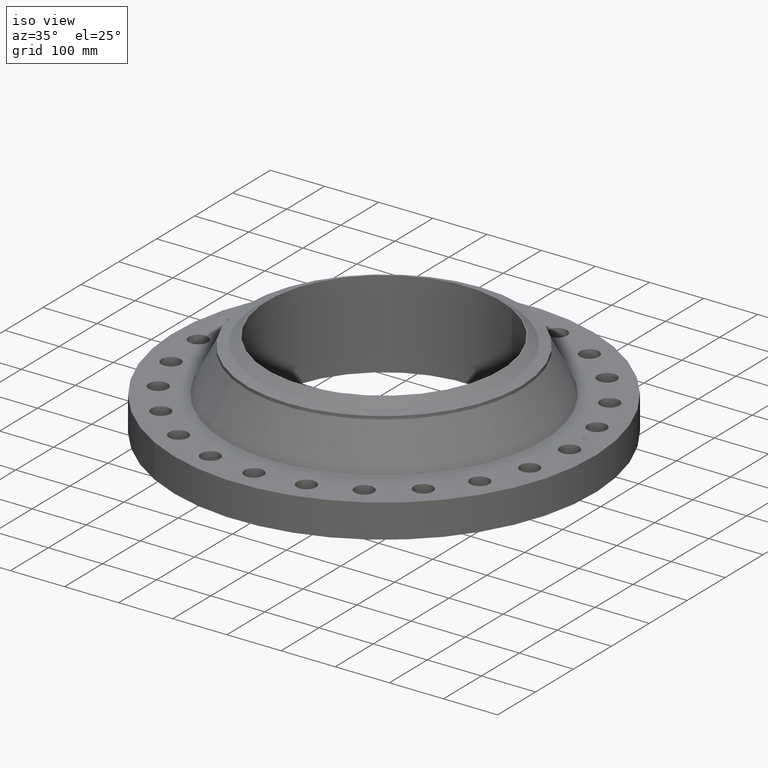
[diagram: clean part render]
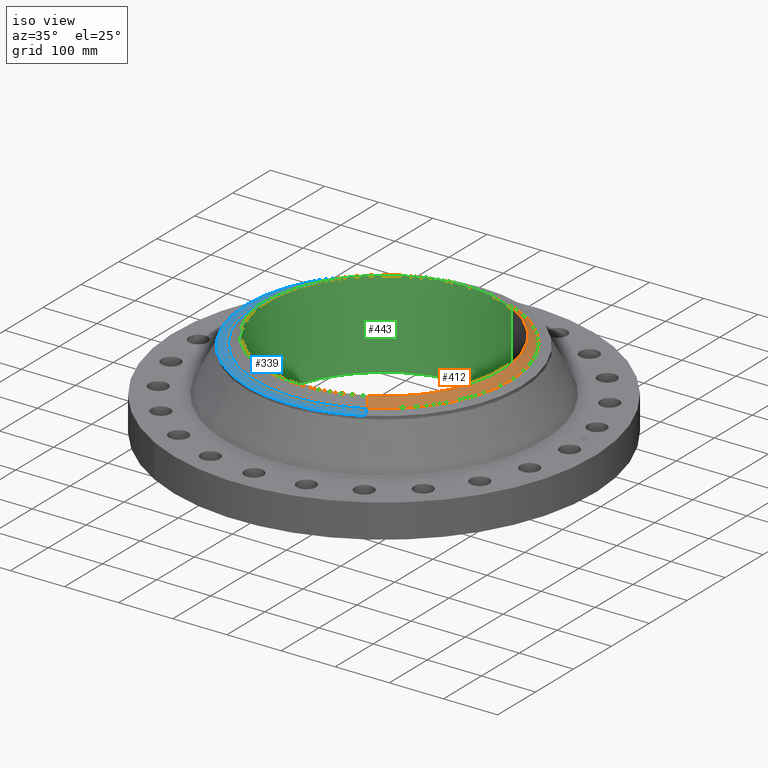
[diagram: same view with three faces highlighted in distinct colors, each labeled with its STEP entity id]
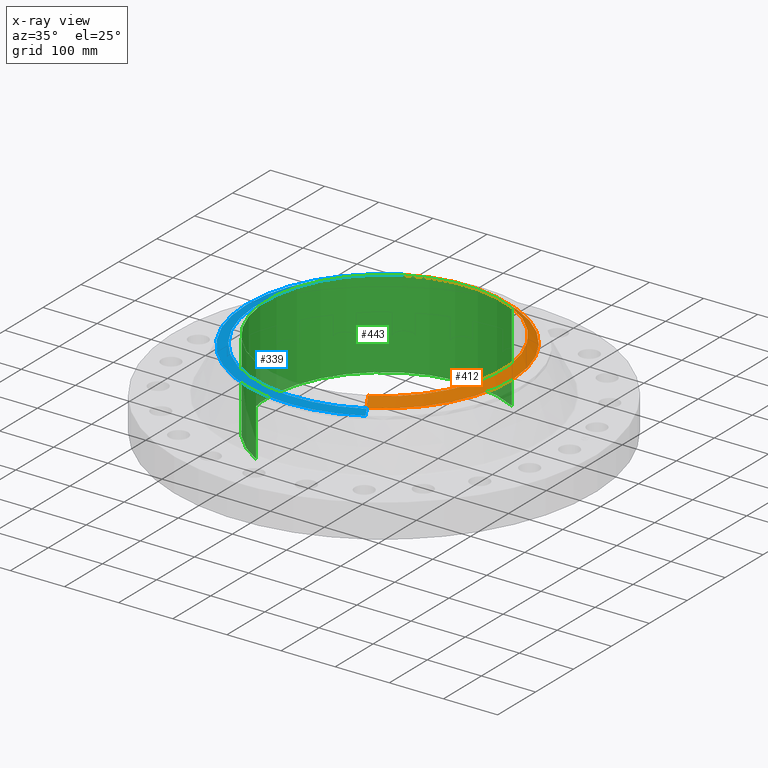
[diagram: x-ray of the same camera — body ghosted, the three highlighted faces saturated]
A machine part, iso view with three faces highlighted in distinct colors.
The next image is the same camera in x-ray (body ghosted, the three faces saturated) — at least one of them is partly hidden behind the body in this view.
Their STEP definitions:

[orange] entity #412 — the highlighted conical surface has half-angle 52.5 deg.
#347=AXIS2_PLACEMENT_3D('Circle Axis2P3D',#345,#346,$) ;
#385=AXIS2_PLACEMENT_3D('Cone Axis2P3D',#382,#383,#384) ;
#396=AXIS2_PLACEMENT_3D('Circle Axis2P3D',#394,#395,$) ;
#345=CARTESIAN_POINT('Axis2P3D Location',(0.,0.,6.32000000003)) ;
#349=CARTESIAN_POINT('Vertex',(4.11286712056,-7.52855276522,6.32000000003)) ;
#351=CARTESIAN_POINT('Vertex',(-4.11286712056,7.52855276522,6.32000000003)) ;
#382=CARTESIAN_POINT('Axis2P3D Location',(0.,0.,6.32000000003)) ;
#387=CARTESIAN_POINT('Line Origine',(4.26780842311,-7.81217091713,6.07201437259)) ;
#391=CARTESIAN_POINT('Vertex',(4.42274972566,-8.09578906903,5.82402874515)) ;
#394=CARTESIAN_POINT('Axis2P3D Location',(0.,0.,5.82402874515)) ;
#398=CARTESIAN_POINT('Vertex',(-4.42274972566,8.09578906903,5.82402874515)) ;
#401=CARTESIAN_POINT('Line Origine',(-4.26780842311,7.81217091713,6.07201437259)) ;
#346=DIRECTION('Axis2P3D Direction',(0.,0.,-0.0393700787402)) ;
#383=DIRECTION('Axis2P3D Direction',(-0.,-0.,-0.0393700787402)) ;
#384=DIRECTION('Axis2P3D XDirection',(0.0188750212049,-0.0345504945626,0.)) ;
#388=DIRECTION('Vector Direction',(0.014974561121,-0.02741075027,-0.023966985394)) ;
#395=DIRECTION('Axis2P3D Direction',(0.,0.,-0.0393700787402)) ;
#402=DIRECTION('Vector Direction',(-0.014974561121,0.02741075027,-0.023966985394)) ;
#389=VECTOR('Line Direction',#388,0.0393700787402) ;
#403=VECTOR('Line Direction',#402,0.0393700787402) ;
#407=ORIENTED_EDGE('',*,*,#353,.F.) ;
#408=ORIENTED_EDGE('',*,*,#393,.T.) ;
#409=ORIENTED_EDGE('',*,*,#400,.T.) ;
#410=ORIENTED_EDGE('',*,*,#405,.F.) ;
#412=ADVANCED_FACE('PartBody',(#411),#386,.T.) ;
#348=CIRCLE('generated circle',#347,8.57874015751) ;
#397=CIRCLE('generated circle',#396,9.22510248106) ;
#386=CONICAL_SURFACE('Cone',#385,8.57874015751,0.916297857297) ;
#353=EDGE_CURVE('',#350,#352,#348,.F.) ;
#393=EDGE_CURVE('',#350,#392,#390,.T.) ;
#400=EDGE_CURVE('',#392,#399,#397,.F.) ;
#405=EDGE_CURVE('',#352,#399,#404,.T.) ;
#406=EDGE_LOOP('',(#407,#408,#409,#410)) ;
#411=FACE_OUTER_BOUND('',#406,.T.) ;
#390=LINE('Line',#387,#389) ;
#404=LINE('Line',#401,#403) ;
#350=VERTEX_POINT('',#349) ;
#352=VERTEX_POINT('',#351) ;
#392=VERTEX_POINT('',#391) ;
#399=VERTEX_POINT('',#398) ;

[blue] entity #339 — the highlighted conical surface has half-angle 80 deg.
#277=AXIS2_PLACEMENT_3D('Circle Axis2P3D',#275,#276,$) ;
#290=AXIS2_PLACEMENT_3D('Circle Axis2P3D',#288,#289,$) ;
#311=AXIS2_PLACEMENT_3D('Cone Axis2P3D',#308,#309,#310) ;
#322=AXIS2_PLACEMENT_3D('Circle Axis2P3D',#320,#321,$) ;
#258=CARTESIAN_POINT('Vertex',(-4.79425538606,-8.77582561894,5.67384235722)) ;
#272=CARTESIAN_POINT('Vertex',(4.79425538606,-8.77582561894,5.67384235722)) ;
#275=CARTESIAN_POINT('Axis2P3D Location',(0.,0.,5.67384235722)) ;
#288=CARTESIAN_POINT('Axis2P3D Location',(0.,0.,5.67384235722)) ;
#292=CARTESIAN_POINT('Vertex',(-4.79425538606,8.77582561894,5.67384235722)) ;
#308=CARTESIAN_POINT('Axis2P3D Location',(0.,0.,5.80141601924)) ;
#313=CARTESIAN_POINT('Line Origine',(4.62082171363,-8.45835741102,5.73762918823)) ;
#317=CARTESIAN_POINT('Vertex',(4.4473880412,-8.14088920311,5.80141601924)) ;
#320=CARTESIAN_POINT('Axis2P3D Location',(0.,0.,5.80141601924)) ;
#324=CARTESIAN_POINT('Vertex',(-4.4473880412,8.14088920311,5.80141601924)) ;
#327=CARTESIAN_POINT('Line Origine',(-4.62082171363,8.45835741102,5.73762918823)) ;
#276=DIRECTION('Axis2P3D Direction',(0.,0.,-0.0393700787402)) ;
#289=DIRECTION('Axis2P3D Direction',(0.,0.,-0.0393700787402)) ;
#309=DIRECTION('Axis2P3D Direction',(-0.,-0.,-0.0393700787402)) ;
#310=DIRECTION('Axis2P3D XDirection',(-0.0188750212049,0.0345504945626,0.)) ;
#314=DIRECTION('Vector Direction',(0.0185882672208,-0.0340255949157,-0.00683654242783)) ;
#321=DIRECTION('Axis2P3D Direction',(0.,0.,-0.0393700787402)) ;
#328=DIRECTION('Vector Direction',(-0.0185882672208,0.0340255949157,-0.00683654242783)) ;
#315=VECTOR('Line Direction',#314,0.0393700787402) ;
#329=VECTOR('Line Direction',#328,0.0393700787402) ;
#333=ORIENTED_EDGE('',*,*,#319,.F.) ;
#334=ORIENTED_EDGE('',*,*,#326,.F.) ;
#335=ORIENTED_EDGE('',*,*,#331,.T.) ;
#336=ORIENTED_EDGE('',*,*,#294,.T.) ;
#337=ORIENTED_EDGE('',*,*,#279,.F.) ;
#339=ADVANCED_FACE('PartBody',(#338),#312,.T.) ;
#278=CIRCLE('generated circle',#277,10.) ;
#291=CIRCLE('generated circle',#290,10.) ;
#323=CIRCLE('generated circle',#322,9.27649380996) ;
#312=CONICAL_SURFACE('Cone',#311,9.27649380996,1.3962634016) ;
#279=EDGE_CURVE('',#273,#259,#278,.T.) ;
#294=EDGE_CURVE('',#293,#259,#291,.F.) ;
#319=EDGE_CURVE('',#318,#273,#316,.T.) ;
#326=EDGE_CURVE('',#325,#318,#323,.F.) ;
#331=EDGE_CURVE('',#325,#293,#330,.T.) ;
#332=EDGE_LOOP('',(#333,#334,#335,#336,#337)) ;
#338=FACE_OUTER_BOUND('',#332,.T.) ;
#316=LINE('Line',#313,#315) ;
#330=LINE('Line',#327,#329) ;
#259=VERTEX_POINT('',#258) ;
#273=VERTEX_POINT('',#272) ;
#293=VERTEX_POINT('',#292) ;
#318=VERTEX_POINT('',#317) ;
#325=VERTEX_POINT('',#324) ;

[green] entity #443 — the highlighted cylindrical surface (partial cylindrical patch) has radius 215.9 mm, axis along (0, 0, -1).
#365=AXIS2_PLACEMENT_3D('Circle Axis2P3D',#363,#364,$) ;
#416=AXIS2_PLACEMENT_3D('Cylinder Axis2P3D',#413,#414,#415) ;
#427=AXIS2_PLACEMENT_3D('Circle Axis2P3D',#425,#426,$) ;
#363=CARTESIAN_POINT('Axis2P3D Location',(0.,0.,6.32000000003)) ;
#367=CARTESIAN_POINT('Vertex',(-4.07511707815,-7.4594517761,6.32000000003)) ;
#369=CARTESIAN_POINT('Vertex',(4.07511707815,7.4594517761,6.32000000003)) ;
#413=CARTESIAN_POINT('Axis2P3D Location',(0.,0.,3.12875000001)) ;
#418=CARTESIAN_POINT('Line Origine',(-4.07511707815,-7.4594517761,3.12875000001)) ;
#422=CARTESIAN_POINT('Vertex',(-4.07511707815,-7.4594517761,-0.0625000000003)) ;
#425=CARTESIAN_POINT('Axis2P3D Location',(0.,0.,-0.0625000000003)) ;
#429=CARTESIAN_POINT('Vertex',(4.07511707815,7.4594517761,-0.0625000000003)) ;
#432=CARTESIAN_POINT('Line Origine',(4.07511707815,7.4594517761,3.12875000001)) ;
#364=DIRECTION('Axis2P3D Direction',(0.,0.,-0.0393700787402)) ;
#414=DIRECTION('Axis2P3D Direction',(0.,0.,-0.0393700787402)) ;
#415=DIRECTION('Axis2P3D XDirection',(0.0188750212049,0.0345504945626,0.)) ;
#419=DIRECTION('Vector Direction',(0.,0.,-0.0393700787402)) ;
#426=DIRECTION('Axis2P3D Direction',(0.,0.,-0.0393700787402)) ;
#433=DIRECTION('Vector Direction',(0.,0.,-0.0393700787402)) ;
#420=VECTOR('Line Direction',#419,0.0393700787402) ;
#434=VECTOR('Line Direction',#433,0.0393700787402) ;
#438=ORIENTED_EDGE('',*,*,#371,.F.) ;
#439=ORIENTED_EDGE('',*,*,#424,.T.) ;
#440=ORIENTED_EDGE('',*,*,#431,.T.) ;
#441=ORIENTED_EDGE('',*,*,#436,.F.) ;
#443=ADVANCED_FACE('PartBody',(#442),#417,.F.) ;
#366=CIRCLE('generated circle',#365,8.50000000003) ;
#428=CIRCLE('generated circle',#427,8.50000000003) ;
#417=CYLINDRICAL_SURFACE('generated cylinder',#416,8.50000000003) ;
#371=EDGE_CURVE('',#368,#370,#366,.T.) ;
#424=EDGE_CURVE('',#368,#423,#421,.T.) ;
#431=EDGE_CURVE('',#423,#430,#428,.T.) ;
#436=EDGE_CURVE('',#370,#430,#435,.T.) ;
#437=EDGE_LOOP('',(#438,#439,#440,#441)) ;
#442=FACE_OUTER_BOUND('',#437,.T.) ;
#421=LINE('Line',#418,#420) ;
#435=LINE('Line',#432,#434) ;
#368=VERTEX_POINT('',#367) ;
#370=VERTEX_POINT('',#369) ;
#423=VERTEX_POINT('',#422) ;
#430=VERTEX_POINT('',#429) ;